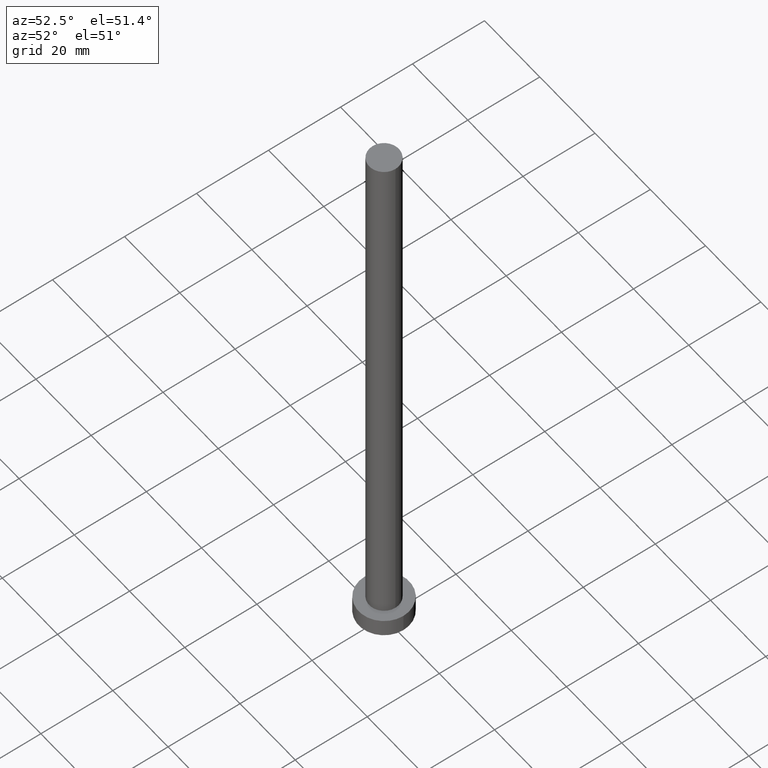
[diagram: clean part render]
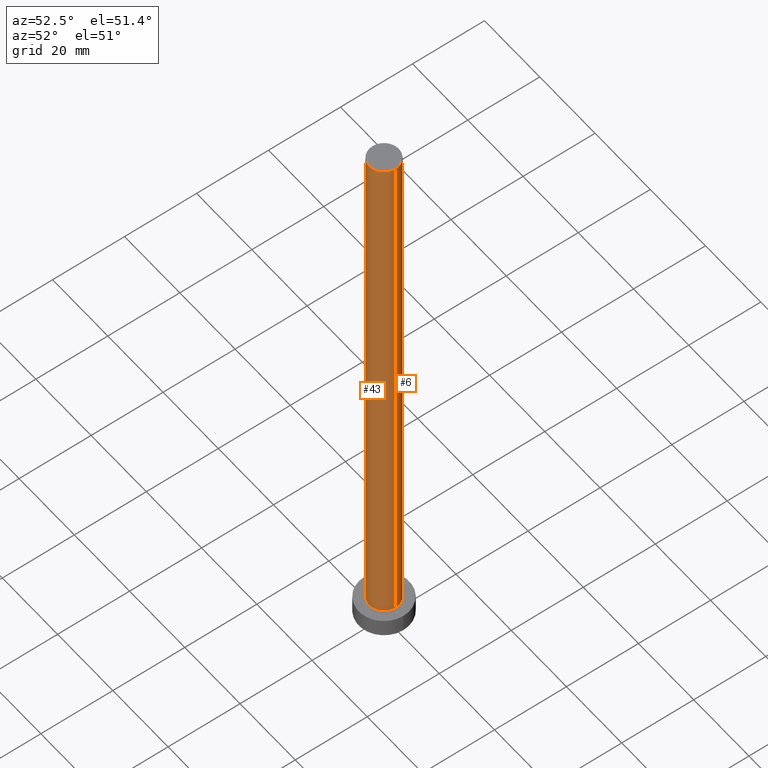
[diagram: same view with one multi-face feature highlighted, each face labeled with its STEP entity id]
A machine part, auxiliary view. The highlighted faces form ONE feature: a constant-radius fillet chain: 2 tangent blend faces with common blend radius 4.1 mm. The faces share edges in the B-rep.
Their STEP definitions:
[1] entity #43 (Cylinder):
#10 = DIRECTION ( 'NONE',  ( 1.000000000000000000, 0.000000000000000000, 0.000000000000000000 ) ) ;
#15 = AXIS2_PLACEMENT_3D ( 'NONE', #253, #135, #110 ) ;
#17 = DIRECTION ( 'NONE',  ( 0.000000000000000000, 0.000000000000000000, 1.000000000000000000 ) ) ;
#23 = ORIENTED_EDGE ( 'NONE', *, *, #158, .F. ) ;
#24 = CIRCLE ( 'NONE', #162, 4.099999999999999645 ) ;
#27 = ORIENTED_EDGE ( 'NONE', *, *, #214, .T. ) ;
#34 = ORIENTED_EDGE ( 'NONE', *, *, #155, .T. ) ;
#35 = DIRECTION ( 'NONE',  ( 0.000000000000000000, 0.000000000000000000, 1.000000000000000000 ) ) ;
#37 = CARTESIAN_POINT ( 'NONE',  ( 0.000000000000000000, 0.000000000000000000, 5.000000000000000000 ) ) ;
#43 = ADVANCED_FACE ( 'NONE', ( #126 ), #194, .T. ) ;
#51 = VECTOR ( 'NONE', #95, 1000.000000000000000 ) ;
#70 = VERTEX_POINT ( 'NONE', #90 ) ;
#73 = CARTESIAN_POINT ( 'NONE',  ( -4.099999999999999645, 0.000000000000000000, 5.000000000000000000 ) ) ;
#77 = AXIS2_PLACEMENT_3D ( 'NONE', #235, #35, #10 ) ;
#90 = CARTESIAN_POINT ( 'NONE',  ( 4.099999999999999645, 5.021051876504147385E-16, 5.000000000000000000 ) ) ;
#95 = DIRECTION ( 'NONE',  ( -0.000000000000000000, -0.000000000000000000, -1.000000000000000000 ) ) ;
#99 = VERTEX_POINT ( 'NONE', #73 ) ;
#110 = DIRECTION ( 'NONE',  ( -1.000000000000000000, 0.000000000000000000, 0.000000000000000000 ) ) ;
#118 = LINE ( 'NONE', #190, #51 ) ;
#124 = EDGE_LOOP ( 'NONE', ( #23, #132, #27, #34 ) ) ;
#126 = FACE_OUTER_BOUND ( 'NONE', #124, .T. ) ;
#132 = ORIENTED_EDGE ( 'NONE', *, *, #134, .F. ) ;
#134 = EDGE_CURVE ( 'NONE', #161, #141, #137, .T. ) ;
#135 = DIRECTION ( 'NONE',  ( -0.000000000000000000, -0.000000000000000000, -1.000000000000000000 ) ) ;
#137 = CIRCLE ( 'NONE', #77, 4.099999999999999645 ) ;
#141 = VERTEX_POINT ( 'NONE', #175 ) ;
#154 = CARTESIAN_POINT ( 'NONE',  ( -4.099999999999999645, 0.000000000000000000, 160.0000000000000000 ) ) ;
#155 = EDGE_CURVE ( 'NONE', #99, #70, #24, .T. ) ;
#158 = EDGE_CURVE ( 'NONE', #141, #70, #118, .T. ) ;
#161 = VERTEX_POINT ( 'NONE', #229 ) ;
#162 = AXIS2_PLACEMENT_3D ( 'NONE', #37, #17, #177 ) ;
#175 = CARTESIAN_POINT ( 'NONE',  ( 4.099999999999999645, 5.021051876504147385E-16, 160.0000000000000000 ) ) ;
#177 = DIRECTION ( 'NONE',  ( 1.000000000000000000, 0.000000000000000000, 0.000000000000000000 ) ) ;
#185 = LINE ( 'NONE', #154, #191 ) ;
#188 = DIRECTION ( 'NONE',  ( -0.000000000000000000, -0.000000000000000000, -1.000000000000000000 ) ) ;
#190 = CARTESIAN_POINT ( 'NONE',  ( 4.099999999999999645, 5.021051876504147385E-16, 160.0000000000000000 ) ) ;
#191 = VECTOR ( 'NONE', #188, 1000.000000000000000 ) ;
#194 = CYLINDRICAL_SURFACE ( 'NONE', #15, 4.099999999999999645 ) ;
#214 = EDGE_CURVE ( 'NONE', #161, #99, #185, .T. ) ;
#229 = CARTESIAN_POINT ( 'NONE',  ( -4.099999999999999645, 0.000000000000000000, 160.0000000000000000 ) ) ;
#235 = CARTESIAN_POINT ( 'NONE',  ( 0.000000000000000000, 0.000000000000000000, 160.0000000000000000 ) ) ;
#253 = CARTESIAN_POINT ( 'NONE',  ( 0.000000000000000000, 0.000000000000000000, 160.0000000000000000 ) ) ;
[2] entity #6 (Cylinder):
#6 = ADVANCED_FACE ( 'NONE', ( #39 ), #236, .T. ) ;
#16 = CIRCLE ( 'NONE', #84, 4.099999999999999645 ) ;
#36 = DIRECTION ( 'NONE',  ( -1.000000000000000000, 0.000000000000000000, 0.000000000000000000 ) ) ;
#39 = FACE_OUTER_BOUND ( 'NONE', #45, .T. ) ;
#40 = ORIENTED_EDGE ( 'NONE', *, *, #216, .F. ) ;
#45 = EDGE_LOOP ( 'NONE', ( #40, #234, #170, #193 ) ) ;
#51 = VECTOR ( 'NONE', #95, 1000.000000000000000 ) ;
#53 = CARTESIAN_POINT ( 'NONE',  ( 0.000000000000000000, 0.000000000000000000, 160.0000000000000000 ) ) ;
#62 = CARTESIAN_POINT ( 'NONE',  ( 0.000000000000000000, 0.000000000000000000, 160.0000000000000000 ) ) ;
#70 = VERTEX_POINT ( 'NONE', #90 ) ;
#73 = CARTESIAN_POINT ( 'NONE',  ( -4.099999999999999645, 0.000000000000000000, 5.000000000000000000 ) ) ;
#84 = AXIS2_PLACEMENT_3D ( 'NONE', #53, #248, #226 ) ;
#90 = CARTESIAN_POINT ( 'NONE',  ( 4.099999999999999645, 5.021051876504147385E-16, 5.000000000000000000 ) ) ;
#95 = DIRECTION ( 'NONE',  ( -0.000000000000000000, -0.000000000000000000, -1.000000000000000000 ) ) ;
#99 = VERTEX_POINT ( 'NONE', #73 ) ;
#101 = AXIS2_PLACEMENT_3D ( 'NONE', #62, #213, #36 ) ;
#118 = LINE ( 'NONE', #190, #51 ) ;
#141 = VERTEX_POINT ( 'NONE', #175 ) ;
#146 = DIRECTION ( 'NONE',  ( 0.000000000000000000, 0.000000000000000000, 1.000000000000000000 ) ) ;
#154 = CARTESIAN_POINT ( 'NONE',  ( -4.099999999999999645, 0.000000000000000000, 160.0000000000000000 ) ) ;
#158 = EDGE_CURVE ( 'NONE', #141, #70, #118, .T. ) ;
#161 = VERTEX_POINT ( 'NONE', #229 ) ;
#170 = ORIENTED_EDGE ( 'NONE', *, *, #210, .T. ) ;
#175 = CARTESIAN_POINT ( 'NONE',  ( 4.099999999999999645, 5.021051876504147385E-16, 160.0000000000000000 ) ) ;
#179 = CARTESIAN_POINT ( 'NONE',  ( 0.000000000000000000, 0.000000000000000000, 5.000000000000000000 ) ) ;
#181 = DIRECTION ( 'NONE',  ( 1.000000000000000000, 0.000000000000000000, 0.000000000000000000 ) ) ;
#185 = LINE ( 'NONE', #154, #191 ) ;
#188 = DIRECTION ( 'NONE',  ( -0.000000000000000000, -0.000000000000000000, -1.000000000000000000 ) ) ;
#190 = CARTESIAN_POINT ( 'NONE',  ( 4.099999999999999645, 5.021051876504147385E-16, 160.0000000000000000 ) ) ;
#191 = VECTOR ( 'NONE', #188, 1000.000000000000000 ) ;
#193 = ORIENTED_EDGE ( 'NONE', *, *, #214, .F. ) ;
#210 = EDGE_CURVE ( 'NONE', #70, #99, #223, .T. ) ;
#213 = DIRECTION ( 'NONE',  ( -0.000000000000000000, -0.000000000000000000, -1.000000000000000000 ) ) ;
#214 = EDGE_CURVE ( 'NONE', #161, #99, #185, .T. ) ;
#216 = EDGE_CURVE ( 'NONE', #141, #161, #16, .T. ) ;
#223 = CIRCLE ( 'NONE', #227, 4.099999999999999645 ) ;
#226 = DIRECTION ( 'NONE',  ( 1.000000000000000000, 0.000000000000000000, 0.000000000000000000 ) ) ;
#227 = AXIS2_PLACEMENT_3D ( 'NONE', #179, #146, #181 ) ;
#229 = CARTESIAN_POINT ( 'NONE',  ( -4.099999999999999645, 0.000000000000000000, 160.0000000000000000 ) ) ;
#234 = ORIENTED_EDGE ( 'NONE', *, *, #158, .T. ) ;
#236 = CYLINDRICAL_SURFACE ( 'NONE', #101, 4.099999999999999645 ) ;
#248 = DIRECTION ( 'NONE',  ( 0.000000000000000000, 0.000000000000000000, 1.000000000000000000 ) ) ;